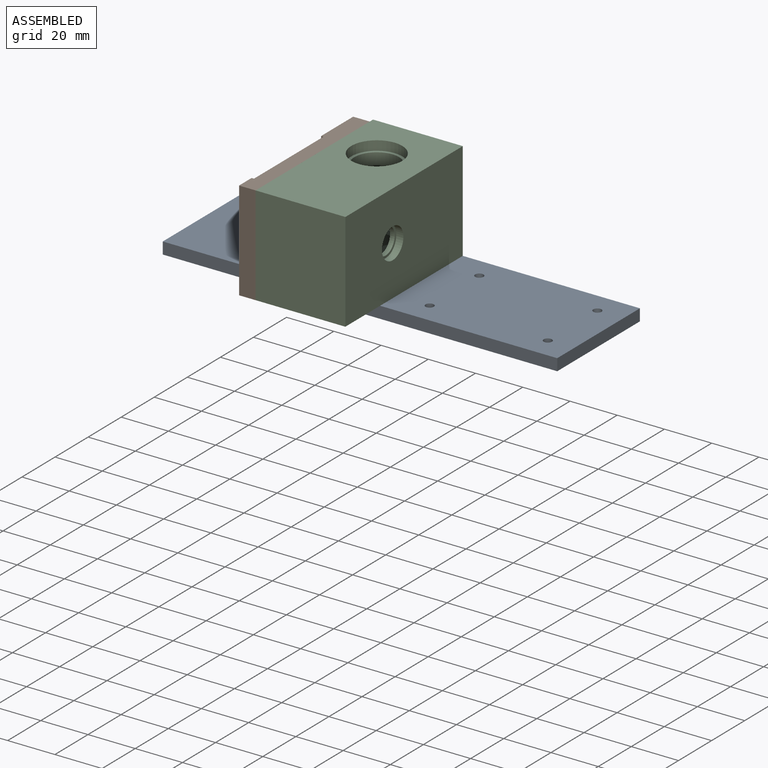
[diagram: assembled view]
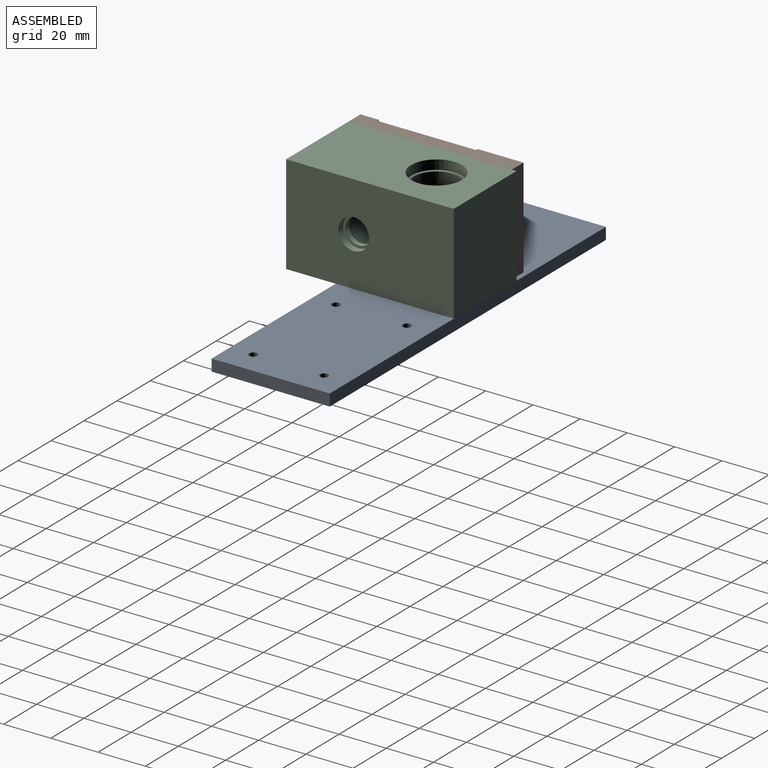
[diagram: assembled view, second angle]
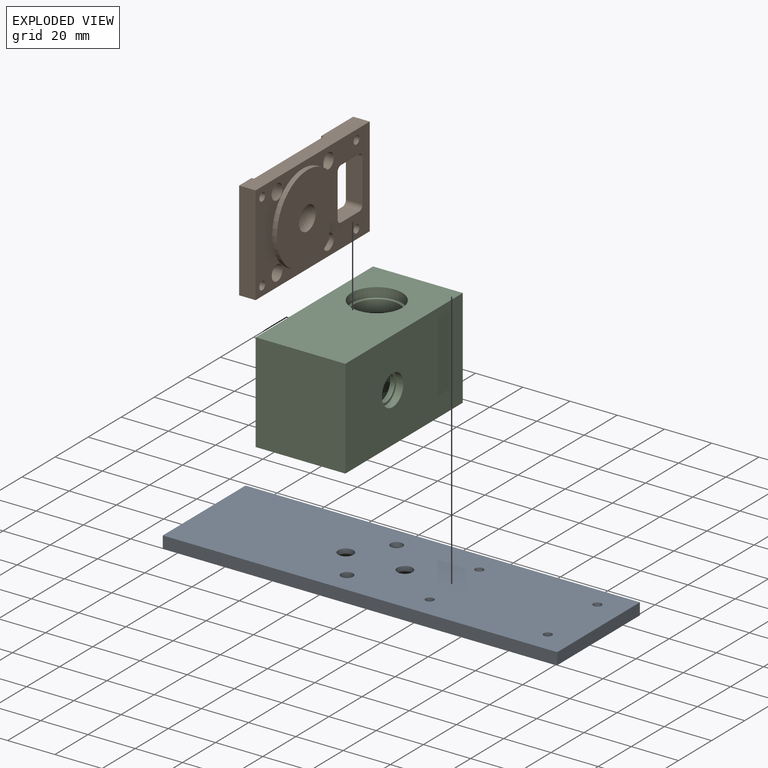
[diagram: exploded view]
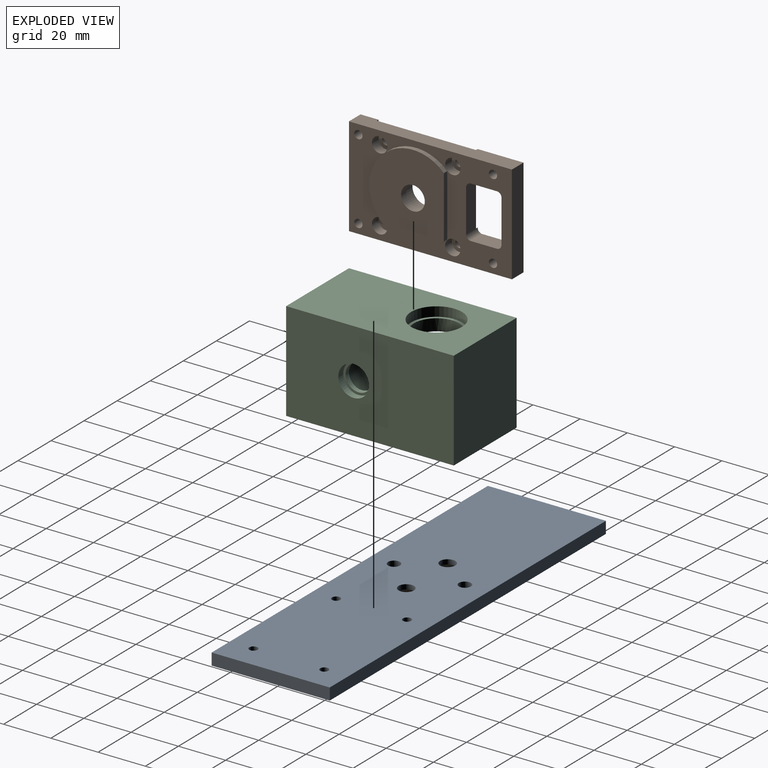
[diagram: exploded view, second angle]
ASSEMBLY  parts=3 mates=2
PART A: 20 faces, bbox 167x50x5 mm
  f0: plane 167x5mm, normal (0,-1,0), area 835mm2, adj f1,f3,f4,f5
  f1: plane 50x5mm, normal (1,0,0), area 250mm2, adj f0,f2,f4,f5
  f2: plane 167x5mm, normal (0,1,0), area 835mm2, adj f1,f3,f4,f5
  f3: plane 50x5mm, normal (-1,0,0), area 250mm2, adj f0,f2,f4,f5
  f4: plane 167x50mm, normal (0,0,1), area 8204.3mm2, adj f0,f1,f2,f3,f6,f7,f8,f9
  f5: plane 167x50mm, normal (0,0,-1), area 7887mm2, adj f0,f1,f2,f3,f10,f11,f14,f15
  f6: cylinder r=1.75mm len=3.5mm, axis (0,0,1), area 33mm2, adj f4,f16
  f7: cylinder r=1.75mm len=3.5mm, axis (0,0,1), area 33mm2, adj f4,f15
  f8: cylinder r=1.75mm len=3.5mm, axis (0,0,1), area 33mm2, adj f4,f14
  f9: cylinder r=1.75mm len=3.5mm, axis (0,0,1), area 33mm2, adj f4,f17
  f10: cylinder r=2.55mm len=5.1mm, axis (0,0,1), area 80.1mm2, adj f4,f5
  f11: cylinder r=2.55mm len=5.1mm, axis (0,0,1), area 80.1mm2, adj f4,f5
  f12: cylinder r=3.25mm len=6.5mm, axis (0,0,1), area 40.8mm2, adj f4,f18
  f13: cylinder r=3.25mm len=6.5mm, axis (0,0,1), area 40.8mm2, adj f4,f19
  f14: cone r=1.75mm half-angle=45deg, axis (0,0,-1), area 48.9mm2, adj f5,f8
  f15: cone r=1.75mm half-angle=45deg, axis (0,0,-1), area 48.9mm2, adj f5,f7
  f16: cone r=1.75mm half-angle=45deg, axis (0,0,-1), area 48.9mm2, adj f5,f6
  f17: cone r=1.75mm half-angle=45deg, axis (0,0,-1), area 48.9mm2, adj f5,f9
  f18: cone r=3.25mm half-angle=45deg, axis (0,0,-1), area 126.6mm2, adj f5,f12
  f19: cone r=3.25mm half-angle=45deg, axis (0,0,-1), area 126.6mm2, adj f5,f13
PART B: 49 faces, bbox 42x69x9 mm
  f0: plane 69x7mm, normal (-1,0,0), area 441mm2, adj f1,f16,f18,f19,f28,f29,f30,f36
  f1: plane 42x7mm, normal (0,-1,0), area 294mm2, adj f0,f17,f19,f36
  f2: plane 37x31.6mm, normal (0,0,-1), area 898.7mm2, adj f31,f34,f35
  f3: cylinder r=1.75mm len=4.5mm, axis (0,0,1), area 49.5mm2, adj f20,f36
  f4: cylinder r=1.75mm len=4.5mm, axis (0,0,1), area 49.5mm2, adj f22,f36
  f5: cylinder r=1.75mm len=4.5mm, axis (0,0,1), area 49.5mm2, adj f24,f36
  f6: cylinder r=1.75mm len=4.5mm, axis (0,0,1), area 49.5mm2, adj f26,f36
  f7: plane 18x7mm, normal (0,-1,0), area 126mm2, adj f8,f14,f16,f36
  f8: cylinder r=2mm len=7mm, axis (0,0,1), area 22mm2, adj f7,f9,f16,f36
  f9: plane 11x7mm, normal (1,0,0), area 77mm2, adj f8,f10,f16,f36
  f10: cylinder r=2mm len=7mm, axis (0,0,1), area 22mm2, adj f9,f11,f16,f29,f36
  f11: plane 18x6mm, normal (0,1,0), area 108mm2, adj f10,f12,f30,f36
  f12: cylinder r=2mm len=7mm, axis (0,0,1), area 22mm2, adj f11,f13,f15,f16,f36
  f13: plane 11x7mm, normal (-1,0,0), area 77mm2, adj f12,f14,f16,f36
  f14: cylinder r=2mm len=7mm, axis (0,0,1), area 22mm2, adj f7,f13,f16,f36
  f15: plane 12x1mm, normal (0,-1,0), area 12mm2, adj f12,f16,f17,f30
  f16: plane 42x19.4mm, normal (0,0,1), area 421.9mm2, adj f0,f7,f8,f9,f10,f12,f13,f14
  f17: plane 69x7mm, normal (1,0,0), area 441mm2, adj f1,f15,f16,f18,f19,f28,f30,f36
  f18: plane 42x7mm, normal (0,1,0), area 294mm2, adj f0,f16,f17,f36
  f19: plane 42x7.6mm, normal (0,0,1), area 252.8mm2, adj f0,f1,f17,f25,f27,f28
  f20: plane 6.5x6.5mm, normal (0,0,1), area 23.6mm2, adj f3,f21
  f21: cylinder r=3.25mm len=6.5mm, axis (0,0,1), area 51.1mm2, adj f16,f20
  f22: plane 6.5x6.5mm, normal (0,0,1), area 23.6mm2, adj f4,f23
  f23: cylinder r=3.25mm len=6.5mm, axis (0,0,1), area 51.1mm2, adj f16,f22
  f24: plane 6.5x6.5mm, normal (0,0,1), area 23.6mm2, adj f5,f25
  f25: cylinder r=3.25mm len=6.5mm, axis (0,0,1), area 51.1mm2, adj f19,f24
  f26: plane 6.5x6.5mm, normal (0,0,1), area 23.6mm2, adj f6,f27
  f27: cylinder r=3.25mm len=6.5mm, axis (0,0,1), area 51.1mm2, adj f19,f26
  f28: plane 42x1mm, normal (0,1,0), area 42mm2, adj f0,f17,f19,f30
  f29: plane 12x1mm, normal (0,-1,0), area 12mm2, adj f0,f10,f16,f30
  f30: plane 42x42mm, normal (0,0,1), area 1618.9mm2, adj f0,f11,f15,f17,f28,f29,f33,f37
  f31: cylinder r=5.03mm len=10.05mm, axis (0,0,1), area 101.1mm2, adj f2,f32
  f32: plane 11.65x11.65mm, normal (0,0,1), area 27.3mm2, adj f31,f33
  f33: cylinder r=5.83mm len=11.65mm, axis (0,0,1), area 175.7mm2, adj f30,f32
  f34: plane 26.13x2mm, normal (0,1,0), area 52.3mm2, adj f2,f35,f36
  f35: cylinder r=18.5mm len=37mm, axis (0,0,-1), area 174.5mm2, adj f2,f34,f36
  f36: plane 69x42mm, normal (0,0,-1), area 1422.2mm2, adj f0,f1,f3,f4,f5,f6,f7,f8
  f37: cylinder r=1.75mm len=3.5mm, axis (0,0,-1), area 22mm2, adj f30,f38
  f38: plane 6.5x6.5mm, normal (0,0,-1), area 23.6mm2, adj f37,f39
  f39: cylinder r=3.25mm len=6.5mm, axis (0,0,-1), area 81.7mm2, adj f36,f38
  f40: cylinder r=1.75mm len=3.5mm, axis (0,0,-1), area 22mm2, adj f30,f41
  f41: plane 6.5x6.5mm, normal (0,0,-1), area 23.6mm2, adj f40,f42
  f42: cylinder r=3.25mm len=6.5mm, axis (0,0,-1), area 81.7mm2, adj f36,f41
  f43: cylinder r=1.75mm len=3.5mm, axis (0,0,-1), area 22mm2, adj f30,f44
  f44: plane 6.5x6.5mm, normal (0,0,-1), area 23.6mm2, adj f43,f45
  f45: cylinder r=3.25mm len=6.5mm, axis (0,0,-1), area 81.7mm2, adj f36,f44
  f46: cylinder r=1.75mm len=3.5mm, axis (0,0,-1), area 22mm2, adj f30,f47
  f47: plane 6.5x6.5mm, normal (0,0,-1), area 23.6mm2, adj f46,f48
  f48: cylinder r=3.25mm len=6.5mm, axis (0,0,-1), area 81.7mm2, adj f36,f47
PART C: 46 faces, bbox 42x71x38 mm
  f0: cylinder r=5.5mm len=11mm, axis (0,0,-1), area 69.1mm2, adj f1,f45
  f1: plane 51x24mm, normal (0,0,1), area 1103.9mm2, adj f0,f2,f3,f4,f6,f7,f8,f14
  f2: plane 41x33mm, normal (1,0,0), area 1162mm2, adj f1,f3,f5,f15,f25,f26,f38,f41
  f3: cylinder r=5mm len=30.5mm, axis (0,0,1), area 239.5mm2, adj f1,f2,f4,f26
  f4: plane 30.5x14mm, normal (0,1,0), area 427mm2, adj f1,f3,f6,f16,f26
  f5: plane 71x42mm, normal (0,0,1), area 1256mm2, adj f2,f9,f10,f11,f12,f14,f15,f16
  f6: cylinder r=5mm len=27mm, axis (0,0,1), area 212.1mm2, adj f1,f4,f7,f22
  f7: plane 41x27mm, normal (-1,0,0), area 821.9mm2, adj f1,f6,f8,f22,f35
  f8: cylinder r=5mm len=27mm, axis (0,0,1), area 212.1mm2, adj f1,f7,f14,f22
  f9: plane 42x38mm, normal (0,-1,0), area 1596mm2, adj f5,f10,f12,f13
  f10: plane 71x38mm, normal (1,0,0), area 2333.2mm2, adj f5,f9,f11,f13,f37
  f11: plane 42x38mm, normal (0,1,0), area 1596mm2, adj f5,f10,f12,f13
  f12: plane 71x38mm, normal (-1,0,0), area 2524.9mm2, adj f5,f9,f11,f13,f40,f41,f43
  f13: plane 71x42mm, normal (0,0,-1), area 2849.3mm2, adj f9,f10,f11,f12,f44
  f14: plane 33x17mm, normal (0,-1,0), area 480mm2, adj f1,f5,f8,f15,f21,f22
  f15: cylinder r=5mm len=33mm, axis (0,0,1), area 259.2mm2, adj f1,f2,f5,f14
  f16: plane 9x6mm, normal (1,0,0), area 45.1mm2, adj f4,f5,f17,f22,f25,f26
  f17: cylinder r=2mm len=6mm, axis (0,0,1), area 18.8mm2, adj f5,f16,f18,f22
  f18: plane 6x4mm, normal (0,1,0), area 24mm2, adj f5,f17,f19,f22
  f19: cylinder r=2mm len=6mm, axis (0,0,1), area 18.8mm2, adj f5,f18,f20,f22
  f20: plane 55x6mm, normal (-1,0,0), area 275.6mm2, adj f5,f19,f21,f22,f23,f24
  f21: cylinder r=5mm len=6mm, axis (0,0,1), area 47.1mm2, adj f5,f14,f20,f22
  f22: plane 62x8mm, normal (0,0,1), area 244.6mm2, adj f6,f7,f8,f14,f16,f17,f18,f19
  f23: cylinder r=18.53mm len=21.75mm, axis (0,0,1), area 58.1mm2, adj f5,f20,f24
  f24: plane 21.75x3.53mm, normal (0,0,1), area 52.2mm2, adj f20,f23
  f25: cylinder r=18.53mm len=32.64mm, axis (0,0,1), area 130.8mm2, adj f2,f5,f16,f26
  f26: plane 32.64x25.53mm, normal (0,0,1), area 207mm2, adj f2,f3,f4,f16,f25
  f27: cone r=0mm half-angle=59deg, axis (0,0,1), area 5.7mm2, adj f28
  f28: cylinder r=1.25mm len=10mm, axis (0,0,1), area 78.5mm2, adj f5,f27
  f29: cone r=0mm half-angle=59deg, axis (0,0,1), area 5.7mm2, adj f30
  f30: cylinder r=1.25mm len=10mm, axis (0,0,1), area 78.5mm2, adj f5,f29
  f31: cone r=0mm half-angle=59deg, axis (0,0,1), area 5.7mm2, adj f32
  f32: cylinder r=1.25mm len=10mm, axis (0,0,1), area 78.5mm2, adj f5,f31
  f33: cone r=0mm half-angle=59deg, axis (0,0,1), area 5.7mm2, adj f34
  f34: cylinder r=1.25mm len=10mm, axis (0,0,1), area 78.5mm2, adj f5,f33
  f35: cylinder r=9.53mm len=19.05mm, axis (1,0,0), area 299.3mm2, adj f7,f36
  f36: plane 21.55x21.55mm, normal (1,0,0), area 79.7mm2, adj f35,f37
  f37: cylinder r=10.78mm len=21.55mm, axis (1,0,0), area 270.8mm2, adj f10,f36
  f38: cylinder r=5.53mm len=11.05mm, axis (-1,0,0), area 138.9mm2, adj f2,f39
  f39: plane 13.05x13.05mm, normal (-1,0,0), area 37.9mm2, adj f38,f40
  f40: cylinder r=6.53mm len=13.05mm, axis (-1,0,0), area 205mm2, adj f12,f39
  f41: cylinder r=2.5mm len=9mm, axis (-1,0,0), area 141.4mm2, adj f2,f12
  f42: cone r=0mm half-angle=59deg, axis (-1,0,0), area 1.2mm2, adj f1,f43
  f43: cylinder r=2.5mm len=10mm, axis (-1,0,0), area 144.6mm2, adj f1,f2,f12,f42
  f44: cylinder r=6.5mm len=13mm, axis (0,0,-1), area 122.5mm2, adj f13,f45
  f45: plane 13x13mm, normal (0,0,-1), area 37.7mm2, adj f0,f44
PLACE A rot(axis=(0,0,1),180deg) t=(0.66,0,0)mm
PLACE B rot(axis=(0,-1,0),90deg) t=(-26.84,-11.5,26)mm
PLACE C rot(axis=(0,-1,0),90deg) t=(9.16,-10.5,26)mm
MATE fastened B.f4 <-> C.f29  axis (1,0,0) through (-28.84,15,43)mm
MATE fastened C.f43 <-> A.f13  axis (0,0,-1) through (2.16,0,5)mm
